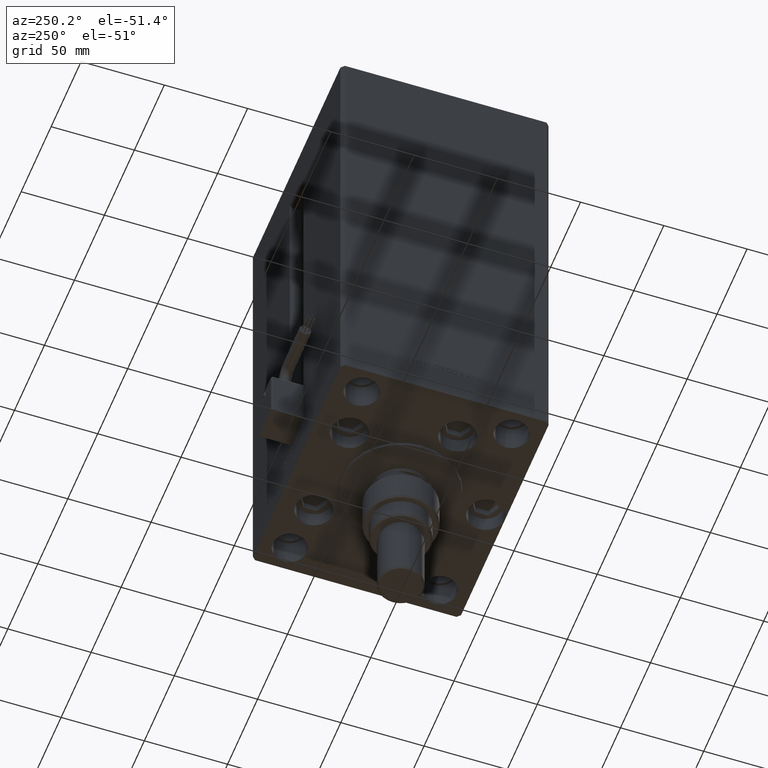
[diagram: clean part render]
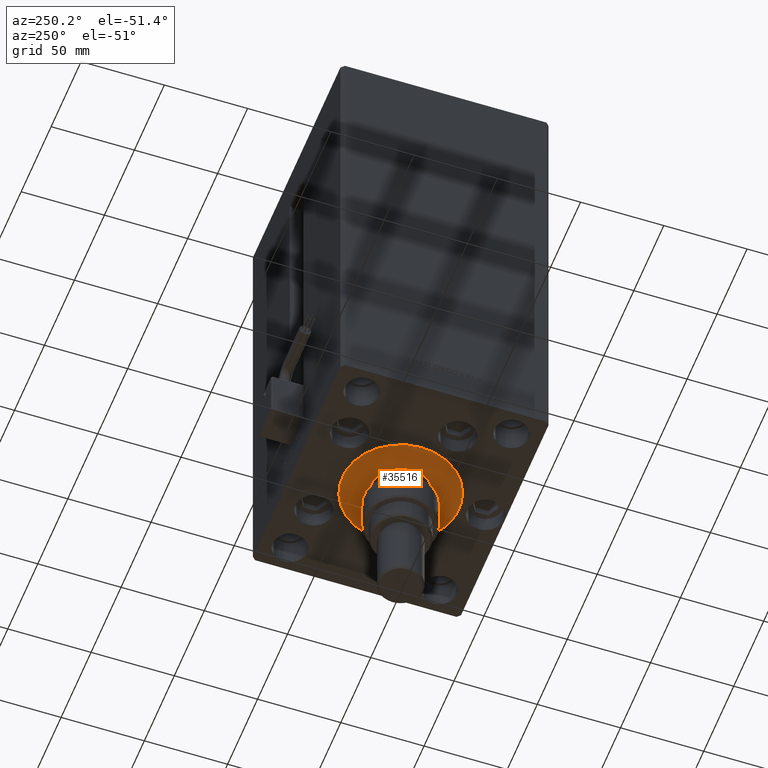
[diagram: same view with one face highlighted and labeled with its STEP entity id]
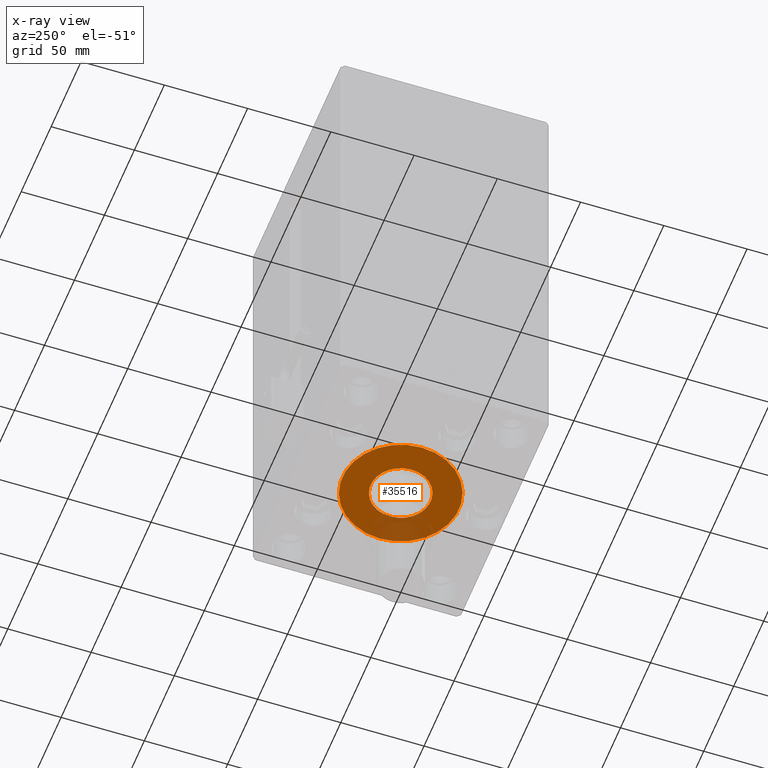
[diagram: x-ray of the same camera — body ghosted, the highlighted face saturated]
A machine part, auxiliary view. The second image highlights one B-rep face of the part: STEP entity #35516.
The next image is the same camera in x-ray: the body ghosted, the highlighted face saturated — about 20% of this face is hidden behind the body in this view.
In plain terms, the highlighted planar face has unit normal (0, 0, -1).
Its self-contained STEP definition (entity closure, byte-faithful):
#1176 = EDGE_LOOP ( 'NONE', ( #23591, #6053 ) ) ;
#1471 = EDGE_CURVE ( 'NONE', #4828, #3694, #32079, .T. ) ;
#2628 = CARTESIAN_POINT ( 'NONE',  ( 0.000000000000000000, -6.938893903907228378E-15, 2.000000000000000000 ) ) ;
#3694 = VERTEX_POINT ( 'NONE', #29587 ) ;
#4299 = CIRCLE ( 'NONE', #31732, 18.00000000000000000 ) ;
#4828 = VERTEX_POINT ( 'NONE', #39998 ) ;
#6053 = ORIENTED_EDGE ( 'NONE', *, *, #31629, .F. ) ;
#6396 = DIRECTION ( 'NONE',  ( 1.000000000000000000, 0.000000000000000000, 0.000000000000000000 ) ) ;
#8555 = DIRECTION ( 'NONE',  ( 1.000000000000000000, 0.000000000000000000, 0.000000000000000000 ) ) ;
#13385 = DIRECTION ( 'NONE',  ( 1.000000000000000000, 0.000000000000000000, 0.000000000000000000 ) ) ;
#14181 = EDGE_CURVE ( 'NONE', #3694, #4828, #27293, .T. ) ;
#14533 = ORIENTED_EDGE ( 'NONE', *, *, #1471, .T. ) ;
#14765 = DIRECTION ( 'NONE',  ( 1.000000000000000000, 0.000000000000000000, -0.000000000000000000 ) ) ;
#15240 = DIRECTION ( 'NONE',  ( 0.000000000000000000, 0.000000000000000000, 1.000000000000000000 ) ) ;
#16068 = CARTESIAN_POINT ( 'NONE',  ( -18.00000000000000000, -4.734529665441992555E-15, 2.000000000000000000 ) ) ;
#20884 = CARTESIAN_POINT ( 'NONE',  ( 0.000000000000000000, -6.938893903907228378E-15, 2.000000000000000000 ) ) ;
#22810 = FACE_OUTER_BOUND ( 'NONE', #33541, .T. ) ;
#23591 = ORIENTED_EDGE ( 'NONE', *, *, #51805, .F. ) ;
#23936 = VERTEX_POINT ( 'NONE', #16068 ) ;
#25415 = DIRECTION ( 'NONE',  ( 0.000000000000000000, 0.000000000000000000, 1.000000000000000000 ) ) ;
#27293 = CIRCLE ( 'NONE', #41886, 35.00000000000000711 ) ;
#28935 = DIRECTION ( 'NONE',  ( 0.000000000000000000, 0.000000000000000000, 1.000000000000000000 ) ) ;
#28970 = ORIENTED_EDGE ( 'NONE', *, *, #14181, .T. ) ;
#29587 = CARTESIAN_POINT ( 'NONE',  ( 35.00000000000000711, -2.652630106891490698E-15, 2.000000000000000000 ) ) ;
#30343 = AXIS2_PLACEMENT_3D ( 'NONE', #2628, #15240, #6396 ) ;
#30951 = DIRECTION ( 'NONE',  ( 1.000000000000000000, 0.000000000000000000, 0.000000000000000000 ) ) ;
#31629 = EDGE_CURVE ( 'NONE', #23936, #44102, #47944, .T. ) ;
#31732 = AXIS2_PLACEMENT_3D ( 'NONE', #20884, #28935, #8555 ) ;
#32079 = CIRCLE ( 'NONE', #30343, 35.00000000000000711 ) ;
#33541 = EDGE_LOOP ( 'NONE', ( #14533, #28970 ) ) ;
#35173 = FACE_BOUND ( 'NONE', #1176, .T. ) ;
#35516 = ADVANCED_FACE ( 'NONE', ( #35173, #22810 ), #46707, .T. ) ;
#37682 = AXIS2_PLACEMENT_3D ( 'NONE', #46980, #51546, #14765 ) ;
#37825 = DIRECTION ( 'NONE',  ( 0.000000000000000000, 0.000000000000000000, 1.000000000000000000 ) ) ;
#39998 = CARTESIAN_POINT ( 'NONE',  ( -35.00000000000000711, -6.938893903907228378E-15, 2.000000000000000000 ) ) ;
#41886 = AXIS2_PLACEMENT_3D ( 'NONE', #51097, #25415, #30951 ) ;
#42125 = CARTESIAN_POINT ( 'NONE',  ( 0.000000000000000000, -6.938893903907228378E-15, 2.000000000000000000 ) ) ;
#44102 = VERTEX_POINT ( 'NONE', #44392 ) ;
#44392 = CARTESIAN_POINT ( 'NONE',  ( 18.00000000000000000, -6.938893903907228378E-15, 2.000000000000000000 ) ) ;
#46707 = PLANE ( 'NONE',  #37682 ) ;
#46980 = CARTESIAN_POINT ( 'NONE',  ( 0.000000000000000000, -6.938893903907228378E-15, 2.000000000000000000 ) ) ;
#47944 = CIRCLE ( 'NONE', #52230, 18.00000000000000000 ) ;
#51097 = CARTESIAN_POINT ( 'NONE',  ( 0.000000000000000000, -6.938893903907228378E-15, 2.000000000000000000 ) ) ;
#51546 = DIRECTION ( 'NONE',  ( 0.000000000000000000, 0.000000000000000000, 1.000000000000000000 ) ) ;
#51805 = EDGE_CURVE ( 'NONE', #44102, #23936, #4299, .T. ) ;
#52230 = AXIS2_PLACEMENT_3D ( 'NONE', #42125, #37825, #13385 ) ;